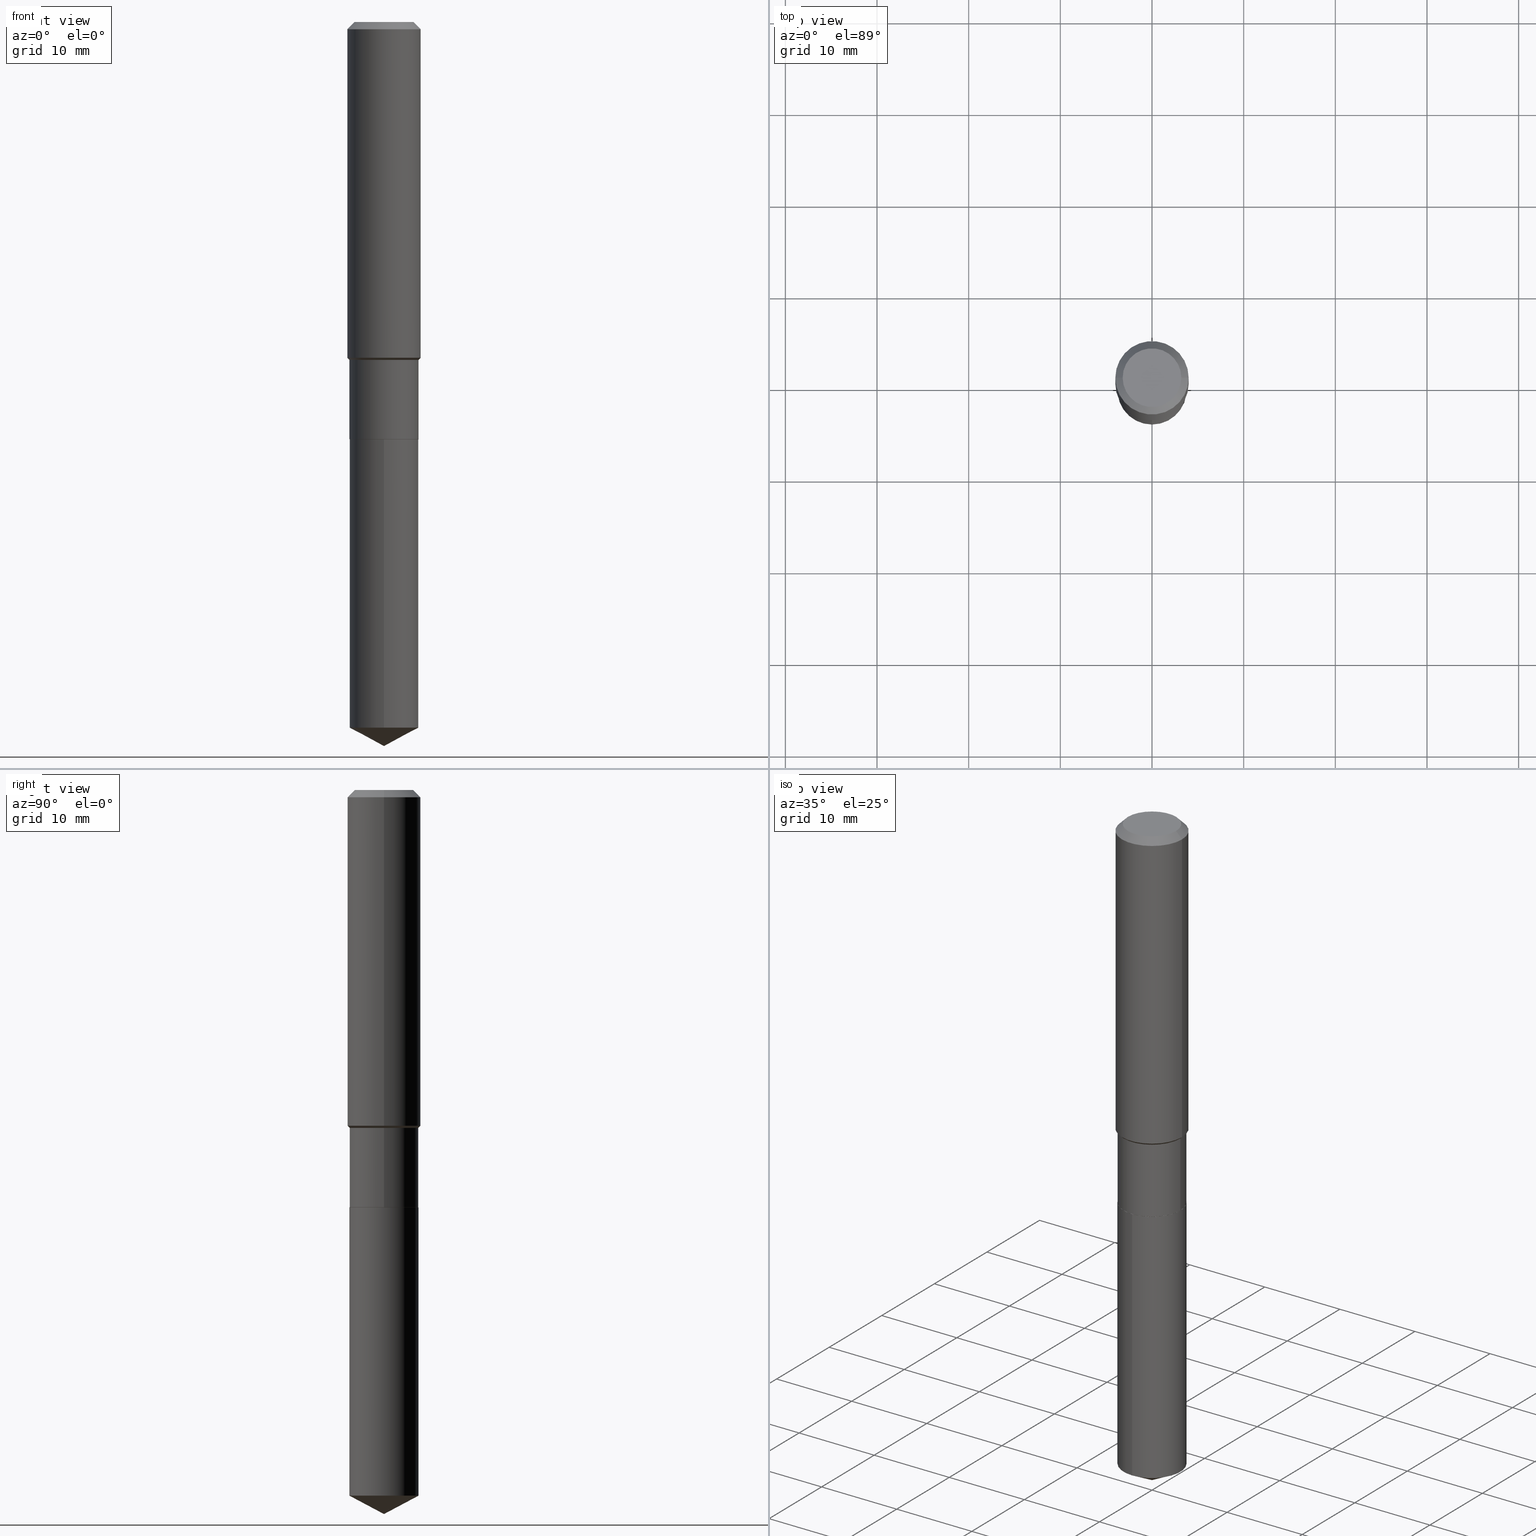
[diagram: canonical four-view strip — front | top / right | iso, engineering-drawing reading convention]
A machine part, canonical four-view strip (front | top / right | iso — engineering-drawing reading convention). The complete STEP part file that produces these views, byte-faithful:
ISO-10303-21;
HEADER;
FILE_DESCRIPTION (( 'STEP AP203' ),
    '1' );
FILE_NAME ('54614.STEP',
    '2024-04-24T15:07:36',
    ( '' ),
    ( '' ),
    'SwSTEP 2.0',
    'SolidWorks 2023',
    '' );
FILE_SCHEMA (( 'CONFIG_CONTROL_DESIGN' ));
ENDSEC;

DATA;
#1 = LENGTH_MEASURE_WITH_UNIT ( LENGTH_MEASURE( 0.02539999999999999897 ), #440 );
#2 = EDGE_LOOP ( 'NONE', ( #79, #457, #85, #409 ) ) ;
#3 = VECTOR ( 'NONE', #425, 39.37007874015748143 ) ;
#4 = SECURITY_CLASSIFICATION ( '', '', #388 ) ;
#5 = CARTESIAN_POINT ( 'NONE',  ( 4.383991928848093439E-29, -6.259178596144105809E-15, -1.792699999999999738 ) ) ;
#6 = DIRECTION ( 'NONE',  ( -6.982962677686265133E-15, -1.000000000000000000, 3.680495781292372402E-15 ) ) ;
#7 = ORIENTED_EDGE ( 'NONE', *, *, #181, .F. ) ;
#8 = VERTEX_POINT ( 'NONE', #126 ) ;
#9 = CIRCLE ( 'NONE', #351, 0.1575000000000001676 ) ;
#10 = APPROVAL_PERSON_ORGANIZATION ( #152, #210, #121 ) ;
#11 = COORDINATED_UNIVERSAL_TIME_OFFSET ( 5, 0, .BEHIND. ) ;
#12 = ADVANCED_BREP_SHAPE_REPRESENTATION ( '54614', ( #163, #154, #84 ), #353 ) ;
#13 = ORIENTED_EDGE ( 'NONE', *, *, #32, .F. ) ;
#14 = ADVANCED_FACE ( 'NONE', ( #481 ), #246, .T. ) ;
#15 = DATE_AND_TIME ( #108, #213 ) ;
#16 = ADVANCED_FACE ( 'NONE', ( #401 ), #288, .F. ) ;
#17 = DIRECTION ( 'NONE',  ( 1.000000000000000000, -6.982962677686264344E-15, 0.000000000000000000 ) ) ;
#18 = ORIENTED_EDGE ( 'NONE', *, *, #349, .T. ) ;
#19 = VERTEX_POINT ( 'NONE', #330 ) ;
#20 = AXIS2_PLACEMENT_3D ( 'NONE', #286, #340, #170 ) ;
#21 = CIRCLE ( 'NONE', #368, 0.1484499999999999986 ) ;
#22 = DIRECTION ( 'NONE',  ( 1.000000000000000000, -6.982962677686267499E-15, 4.876176775795936353E-29 ) ) ;
#23 = PERSON_AND_ORGANIZATION ( #284, #157 ) ;
#24 = FACE_OUTER_BOUND ( 'NONE', #122, .T. ) ;
#25 = CC_DESIGN_PERSON_AND_ORGANIZATION_ASSIGNMENT ( #318, #77, ( #175 ) ) ;
#26 = DIRECTION ( 'NONE',  ( -1.000000000000000000, 6.982962677686265922E-15, -4.876176775795935793E-29 ) ) ;
#27 = DESIGN_CONTEXT ( 'detailed design', #167, 'design' ) ;
#28 = AXIS2_PLACEMENT_3D ( 'NONE', #305, #33, #179 ) ;
#29 = CARTESIAN_POINT ( 'NONE',  ( 0.1260000000000000009, -1.027466422270894443E-15, 3.860086710919126531E-18 ) ) ;
#30 = LINE ( 'NONE', #172, #47 ) ;
#31 = AXIS2_PLACEMENT_3D ( 'NONE', #96, #262, #252 ) ;
#32 = EDGE_CURVE ( 'NONE', #470, #151, #477, .T. ) ;
#33 = DIRECTION ( 'NONE',  ( -2.445684056913023597E-29, 3.491173087549500750E-15, 1.000000000000000000 ) ) ;
#34 = PRODUCT_DEFINITION ( 'UNKNOWN', '', #175, #27 ) ;
#35 = CARTESIAN_POINT ( 'NONE',  ( 0.000000000000000000, 0.000000000000000000, 0.000000000000000000 ) ) ;
#36 = DIRECTION ( 'NONE',  ( -6.982962677686265133E-15, -1.000000000000000000, 3.680495781292372402E-15 ) ) ;
#37 = CC_DESIGN_PERSON_AND_ORGANIZATION_ASSIGNMENT ( #462, #198, ( #4 ) ) ;
#38 = CARTESIAN_POINT ( 'NONE',  ( 7.703226739483228723E-31, -1.099816621735597661E-16, -0.03150000000000019451 ) ) ;
#39 = CONICAL_SURFACE ( 'NONE', #343, 0.1484499999999999431, 0.7853981633974445042 ) ;
#40 = PERSON_AND_ORGANIZATION ( #284, #157 ) ;
#41 = CARTESIAN_POINT ( 'NONE',  ( 3.549108878416488564E-29, -5.067186867063056629E-15, -1.451299999999999812 ) ) ;
#42 = EDGE_LOOP ( 'NONE', ( #370, #259 ) ) ;
#43 = ORIENTED_EDGE ( 'NONE', *, *, #475, .T. ) ;
#44 = LINE ( 'NONE', #189, #485 ) ;
#45 = EDGE_LOOP ( 'NONE', ( #242, #419, #312, #7 ) ) ;
#46 = EDGE_CURVE ( 'NONE', #50, #423, #472, .T. ) ;
#47 = VECTOR ( 'NONE', #484, 39.37007874015748143 ) ;
#48 = CALENDAR_DATE ( 2024, 24, 4 ) ;
#49 = DIRECTION ( 'NONE',  ( -2.445468806185136597E-29, 3.491481338843145583E-15, 1.000000000000000000 ) ) ;
#50 = VERTEX_POINT ( 'NONE', #282 ) ;
#51 = CARTESIAN_POINT ( 'NONE',  ( 7.606084184423361964E-29, -1.085754830227894678E-14, -3.109999999999999876 ) ) ;
#52 = VECTOR ( 'NONE', #64, 39.37007874015748854 ) ;
#53 = DIRECTION ( 'NONE',  ( -2.445468806185136597E-29, 3.491481338843145583E-15, 1.000000000000000000 ) ) ;
#54 = FACE_OUTER_BOUND ( 'NONE', #342, .T. ) ;
#55 = APPROVAL_ROLE ( '' ) ;
#56 = DIRECTION ( 'NONE',  ( 0.000000000000000000, 0.000000000000000000, 1.000000000000000000 ) ) ;
#57 = LINE ( 'NONE', #185, #394 ) ;
#58 = ADVANCED_FACE ( 'NONE', ( #86 ), #473, .T. ) ;
#59 = AXIS2_PLACEMENT_3D ( 'NONE', #35, #438, #255 ) ;
#60 = CARTESIAN_POINT ( 'NONE',  ( 0.1479499999999999982, -7.292307924307788697E-15, -1.792699999999999738 ) ) ;
#61 = VERTEX_POINT ( 'NONE', #360 ) ;
#62 = DIRECTION ( 'NONE',  ( 1.000000000000000000, -6.982962677686265922E-15, 4.876281427513067258E-29 ) ) ;
#63 = ADVANCED_FACE ( 'NONE', ( #24 ), #476, .F. ) ;
#64 = DIRECTION ( 'NONE',  ( -0.7071067811865447972, 7.493145998870346272E-15, 0.7071067811865501263 ) ) ;
#65 = ORIENTED_EDGE ( 'NONE', *, *, #277, .F. ) ;
#66 = AXIS2_PLACEMENT_3D ( 'NONE', #479, #362, #214 ) ;
#67 = CARTESIAN_POINT ( 'NONE',  ( 7.703226739483228723E-31, -1.099816621735597661E-16, -0.03150000000000019451 ) ) ;
#68 = CARTESIAN_POINT ( 'NONE',  ( 4.383991928848093439E-29, -6.259178596144105809E-15, -1.792699999999999738 ) ) ;
#69 = CARTESIAN_POINT ( 'NONE',  ( 0.1479499999999999982, -7.292307924307788697E-15, -1.792699999999999738 ) ) ;
#70 = CARTESIAN_POINT ( 'NONE',  ( 0.1575000000000001676, -6.135405582682112923E-15, -1.442249999999999588 ) ) ;
#71 = CYLINDRICAL_SURFACE ( 'NONE', #59, 0.1484499999999999986 ) ;
#72 = DIRECTION ( 'NONE',  ( -2.445684056913023597E-29, 3.491173087549500750E-15, 1.000000000000000000 ) ) ;
#73 = ORIENTED_EDGE ( 'NONE', *, *, #469, .F. ) ;
#74 = CIRCLE ( 'NONE', #294, 0.1575000000000000011 ) ;
#75 = CALENDAR_DATE ( 2024, 24, 4 ) ;
#76 = EDGE_LOOP ( 'NONE', ( #107, #434, #233, #311 ) ) ;
#77 = PERSON_AND_ORGANIZATION_ROLE ( 'design_supplier' ) ;
#78 = CARTESIAN_POINT ( 'NONE',  ( 3.549108878416488564E-29, -5.067186867063056629E-15, -1.451299999999999812 ) ) ;
#79 = ORIENTED_EDGE ( 'NONE', *, *, #403, .T. ) ;
#80 = CARTESIAN_POINT ( 'NONE',  ( 1.054800691235912301E-15, 0.1484499999999937259, -1.792700000000000182 ) ) ;
#81 = APPROVAL_DATE_TIME ( #243, #210 ) ;
#82 = ORIENTED_EDGE ( 'NONE', *, *, #329, .F. ) ;
#83 = VECTOR ( 'NONE', #341, 39.37007874015748143 ) ;
#84 = AXIS2_PLACEMENT_3D ( 'NONE', #161, #56, #169 ) ;
#85 = ORIENTED_EDGE ( 'NONE', *, *, #240, .F. ) ;
#86 = FACE_OUTER_BOUND ( 'NONE', #145, .T. ) ;
#87 = DIRECTION ( 'NONE',  ( -2.445468806185136597E-29, 3.491481338843145583E-15, 1.000000000000000000 ) ) ;
#88 = AXIS2_PLACEMENT_3D ( 'NONE', #433, #49, #310 ) ;
#89 = DATE_AND_TIME ( #117, #124 ) ;
#90 = DIMENSIONAL_EXPONENTS ( 1.000000000000000000, 0.000000000000000000, 0.000000000000000000, 0.000000000000000000, 0.000000000000000000, 0.000000000000000000, 0.000000000000000000 ) ;
#91 = EDGE_CURVE ( 'NONE', #441, #391, #460, .T. ) ;
#92 = DIRECTION ( 'NONE',  ( 6.273719981627763710E-15, 0.8829475928589293199, 0.4694715627858859208 ) ) ;
#93 = VECTOR ( 'NONE', #92, 39.37007874015748854 ) ;
#94 = VECTOR ( 'NONE', #466, 39.37007874015748143 ) ;
#95 = LOCAL_TIME ( 11, 7, 36.00000000000000000, #289 ) ;
#96 = CARTESIAN_POINT ( 'NONE',  ( 4.383991928848093439E-29, -6.259178596144105809E-15, -1.792699999999999738 ) ) ;
#97 = ORIENTED_EDGE ( 'NONE', *, *, #290, .F. ) ;
#98 = CARTESIAN_POINT ( 'NONE',  ( 3.526977385720512669E-29, -5.035588960946525443E-15, -1.442249999999999588 ) ) ;
#99 = VERTEX_POINT ( 'NONE', #333 ) ;
#100 = CARTESIAN_POINT ( 'NONE',  ( -9.439721640706199741E-47, 1.347742071746726217E-32, 3.860086710912458191E-18 ) ) ;
#101 = DIRECTION ( 'NONE',  ( 1.000000000000000000, -6.982962677686268288E-15, 0.000000000000000000 ) ) ;
#102 = DIRECTION ( 'NONE',  ( -6.982962677686265133E-15, -1.000000000000000000, 3.680495781292372402E-15 ) ) ;
#103 = EDGE_LOOP ( 'NONE', ( #459, #444, #402, #153 ) ) ;
#104 = ADVANCED_FACE ( 'NONE', ( #416 ), #358, .T. ) ;
#105 = DIRECTION ( 'NONE',  ( 0.7071067811865451302, -7.319954787623248157E-15, -0.7071067811865499042 ) ) ;
#106 = LINE ( 'NONE', #268, #287 ) ;
#107 = ORIENTED_EDGE ( 'NONE', *, *, #298, .T. ) ;
#108 = CALENDAR_DATE ( 2024, 24, 4 ) ;
#109 = AXIS2_PLACEMENT_3D ( 'NONE', #452, #420, #297 ) ;
#110 = DIRECTION ( 'NONE',  ( -2.445468806185136597E-29, 3.491481338843145583E-15, 1.000000000000000000 ) ) ;
#111 = VERTEX_POINT ( 'NONE', #60 ) ;
#112 = AXIS2_PLACEMENT_3D ( 'NONE', #118, #395, #17 ) ;
#113 = PERSON_AND_ORGANIZATION_ROLE ( 'creator' ) ;
#114 = CC_DESIGN_PERSON_AND_ORGANIZATION_ASSIGNMENT ( #23, #332, ( #291 ) ) ;
#115 = DIRECTION ( 'NONE',  ( -2.445468806185136597E-29, 3.491481338843145583E-15, 1.000000000000000000 ) ) ;
#116 = ORIENTED_EDGE ( 'NONE', *, *, #141, .F. ) ;
#117 = CALENDAR_DATE ( 2024, 24, 4 ) ;
#118 = CARTESIAN_POINT ( 'NONE',  ( 3.549108878416488564E-29, -5.067186867063056629E-15, -1.451299999999999812 ) ) ;
#119 = ORIENTED_EDGE ( 'NONE', *, *, #364, .T. ) ;
#120 = LINE ( 'NONE', #80, #3 ) ;
#121 = APPROVAL_ROLE ( '' ) ;
#122 = EDGE_LOOP ( 'NONE', ( #275, #256 ) ) ;
#123 = CONICAL_SURFACE ( 'NONE', #66, 0.1575000000000000011, 0.7853981633974449483 ) ;
#124 = LOCAL_TIME ( 11, 7, 36.00000000000000000, #465 ) ;
#125 = PERSON_AND_ORGANIZATION ( #284, #157 ) ;
#126 = CARTESIAN_POINT ( 'NONE',  ( -0.1575000000000000011, -1.453680502737883861E-15, -0.03150000000000019451 ) ) ;
#127 = PERSON_AND_ORGANIZATION ( #284, #157 ) ;
#128 = CIRCLE ( 'NONE', #165, 0.1575000000000000011 ) ;
#129 = ADVANCED_FACE ( 'NONE', ( #442 ), #221, .F. ) ;
#130 = DIRECTION ( 'NONE',  ( 1.000000000000000000, -6.982962677686267499E-15, 0.000000000000000000 ) ) ;
#131 = DIRECTION ( 'NONE',  ( 1.000000000000000000, -6.982962677686265922E-15, 4.876281427513067258E-29 ) ) ;
#132 = DIRECTION ( 'NONE',  ( 1.000000000000000000, -6.982962677686267499E-15, 0.000000000000000000 ) ) ;
#133 = AXIS2_PLACEMENT_3D ( 'NONE', #67, #453, #490 ) ;
#134 = VECTOR ( 'NONE', #192, 39.37007874015748143 ) ;
#135 = DIRECTION ( 'NONE',  ( -2.445468806185136597E-29, 3.491481338843145583E-15, 1.000000000000000000 ) ) ;
#136 = ORIENTED_EDGE ( 'NONE', *, *, #469, .T. ) ;
#137 = CARTESIAN_POINT ( 'NONE',  ( 7.412648154614789449E-29, -1.058253470461137512E-14, -3.031067734869853592 ) ) ;
#138 = CARTESIAN_POINT ( 'NONE',  ( 4.383991928848093439E-29, -6.259178596144105809E-15, -1.792699999999999738 ) ) ;
#139 = CLOSED_SHELL ( 'NONE', ( #315, #389, #58, #258, #448, #146, #299, #14, #104, #16, #63, #350 ) ) ;
#140 = CIRCLE ( 'NONE', #404, 0.1479499999999999982 ) ;
#141 = EDGE_CURVE ( 'NONE', #391, #441, #270, .T. ) ;
#142 = CARTESIAN_POINT ( 'NONE',  ( -0.1484500000000000264, -4.607509170033001160E-15, -1.792199999999999793 ) ) ;
#143 = ORIENTED_EDGE ( 'NONE', *, *, #488, .F. ) ;
#144 = CARTESIAN_POINT ( 'NONE',  ( 7.703226739483228723E-31, -1.099816621735597661E-16, -0.03150000000000019451 ) ) ;
#145 = EDGE_LOOP ( 'NONE', ( #347, #239, #143, #190 ) ) ;
#146 = ADVANCED_FACE ( 'NONE', ( #216 ), #71, .T. ) ;
#147 = CARTESIAN_POINT ( 'NONE',  ( -0.1479499999999999982, -5.207930618587038189E-15, -1.792699999999999738 ) ) ;
#148 = ORIENTED_EDGE ( 'NONE', *, *, #298, .F. ) ;
#149 = DIRECTION ( 'NONE',  ( 0.7071067811866320607, -2.468850131083142557E-15, 0.7071067811864629737 ) ) ;
#150 = CARTESIAN_POINT ( 'NONE',  ( 0.1575000000000000011, -1.209798283909146741E-15, -0.03150000000000019451 ) ) ;
#151 = VERTEX_POINT ( 'NONE', #304 ) ;
#152 = PERSON_AND_ORGANIZATION ( #284, #157 ) ;
#153 = ORIENTED_EDGE ( 'NONE', *, *, #475, .F. ) ;
#154 = MANIFOLD_SOLID_BREP ( 'Body-Move/Copy2[2]', #139 ) ;
#155 = AXIS2_PLACEMENT_3D ( 'NONE', #244, #53, #207 ) ;
#156 = AXIS2_PLACEMENT_3D ( 'NONE', #228, #384, #6 ) ;
#157 = ORGANIZATION ( 'UNSPECIFIED', 'UNSPECIFIED', '' ) ;
#158 = FACE_OUTER_BOUND ( 'NONE', #45, .T. ) ;
#159 = ADVANCED_FACE ( 'NONE', ( #372 ), #447, .T. ) ;
#160 = EDGE_CURVE ( 'NONE', #200, #61, #30, .T. ) ;
#161 = CARTESIAN_POINT ( 'NONE',  ( 0.000000000000000000, 0.000000000000000000, 0.000000000000000000 ) ) ;
#162 = DIRECTION ( 'NONE',  ( -2.445468806185136597E-29, 3.491481338843145583E-15, 1.000000000000000000 ) ) ;
#163 = MANIFOLD_SOLID_BREP ( 'Body-Move/Copy2[1]', #322 ) ;
#164 = CARTESIAN_POINT ( 'NONE',  ( 0.1484499999999999431, -6.103807676565582525E-15, -1.451299999999999812 ) ) ;
#165 = AXIS2_PLACEMENT_3D ( 'NONE', #38, #292, #410 ) ;
#166 = DIRECTION ( 'NONE',  ( -2.445468806185136597E-29, 3.491481338843145583E-15, 1.000000000000000000 ) ) ;
#167 = APPLICATION_CONTEXT ( 'configuration controlled 3d designs of mechanical parts and assemblies' ) ;
#168 = CARTESIAN_POINT ( 'NONE',  ( -0.1260000000000000009, 9.348441284752484904E-16, 3.860086710906112637E-18 ) ) ;
#169 = DIRECTION ( 'NONE',  ( 1.000000000000000000, 0.000000000000000000, 0.000000000000000000 ) ) ;
#170 = DIRECTION ( 'NONE',  ( 1.000000000000000000, -6.982962677686265922E-15, 4.876176775795935793E-29 ) ) ;
#171 = DIRECTION ( 'NONE',  ( 1.000000000000000000, -6.982962677686265133E-15, 4.876176775795935793E-29 ) ) ;
#172 = CARTESIAN_POINT ( 'NONE',  ( -1.036620809502482311E-15, -0.1484500000000062436, -1.792699999999999072 ) ) ;
#173 = AXIS2_PLACEMENT_3D ( 'NONE', #100, #264, #131 ) ;
#174 = VECTOR ( 'NONE', #486, 39.37007874015748143 ) ;
#175 = PRODUCT_DEFINITION_FORMATION_WITH_SPECIFIED_SOURCE ( 'ANY', '', #291, .NOT_KNOWN. ) ;
#176 = SHAPE_DEFINITION_REPRESENTATION ( #480, #12 ) ;
#177 = CC_DESIGN_SECURITY_CLASSIFICATION ( #4, ( #175 ) ) ;
#178 = CARTESIAN_POINT ( 'NONE',  ( -0.1484499999999999431, -4.012386175827188110E-15, -1.451299999999999812 ) ) ;
#179 = DIRECTION ( 'NONE',  ( -6.982962677686268288E-15, -1.000000000000000000, 3.541896320645563630E-15 ) ) ;
#180 = FACE_OUTER_BOUND ( 'NONE', #272, .T. ) ;
#181 = EDGE_CURVE ( 'NONE', #111, #357, #407, .T. ) ;
#182 = EDGE_CURVE ( 'NONE', #99, #406, #313, .T. ) ;
#183 = LINE ( 'NONE', #178, #52 ) ;
#184 = ORIENTED_EDGE ( 'NONE', *, *, #245, .T. ) ;
#185 = CARTESIAN_POINT ( 'NONE',  ( 0.1484499999999999431, -6.103807676565582525E-15, -1.451299999999999812 ) ) ;
#186 = AXIS2_PLACEMENT_3D ( 'NONE', #367, #324, #26 ) ;
#187 = AXIS2_PLACEMENT_3D ( 'NONE', #437, #326, #283 ) ;
#188 = CARTESIAN_POINT ( 'NONE',  ( -1.036620809502451743E-15, -0.1484500000000105457, -3.031067734869853147 ) ) ;
#189 = CARTESIAN_POINT ( 'NONE',  ( 7.605305657039739198E-29, -1.085865350646718111E-14, -3.109999999999999876 ) ) ;
#190 = ORIENTED_EDGE ( 'NONE', *, *, #245, .F. ) ;
#191 = APPROVAL_DATE_TIME ( #471, #316 ) ;
#192 = DIRECTION ( 'NONE',  ( -0.7071067811866320607, 7.493145998870660238E-15, 0.7071067811864629737 ) ) ;
#193 = EDGE_LOOP ( 'NONE', ( #119, #373 ) ) ;
#194 = APPROVAL_ROLE ( '' ) ;
#195 = DIRECTION ( 'NONE',  ( -6.165590087286832874E-15, -0.8829475928589261002, 0.4694715627858920826 ) ) ;
#196 = ORIENTED_EDGE ( 'NONE', *, *, #474, .T. ) ;
#197 = APPROVAL ( #241, 'UNSPECIFIED' ) ;
#198 = PERSON_AND_ORGANIZATION_ROLE ( 'classification_officer' ) ;
#199 = AXIS2_PLACEMENT_3D ( 'NONE', #41, #234, #276 ) ;
#200 = VERTEX_POINT ( 'NONE', #188 ) ;
#201 = CIRCLE ( 'NONE', #280, 0.1484499999999999986 ) ;
#202 = CARTESIAN_POINT ( 'NONE',  ( 0.1575000000000000844, -1.099816621735587677E-15, 7.679978421878603638E-30 ) ) ;
#203 = ORIENTED_EDGE ( 'NONE', *, *, #257, .T. ) ;
#204 = EDGE_CURVE ( 'NONE', #111, #19, #140, .T. ) ;
#205 = ORIENTED_EDGE ( 'NONE', *, *, #182, .F. ) ;
#206 = EDGE_CURVE ( 'NONE', #19, #111, #323, .T. ) ;
#207 = DIRECTION ( 'NONE',  ( 1.000000000000000000, -6.982962677686267499E-15, 4.876176775795936353E-29 ) ) ;
#208 = EDGE_CURVE ( 'NONE', #391, #8, #106, .T. ) ;
#209 = DIRECTION ( 'NONE',  ( -2.445684056913023597E-29, 3.491173087549500750E-15, 1.000000000000000000 ) ) ;
#210 = APPROVAL ( #352, 'UNSPECIFIED' ) ;
#211 = CARTESIAN_POINT ( 'NONE',  ( 0.000000000000000000, 0.000000000000000000, 0.000000000000000000 ) ) ;
#212 = AXIS2_PLACEMENT_3D ( 'NONE', #449, #376, #101 ) ;
#213 = LOCAL_TIME ( 11, 7, 36.00000000000000000, #355 ) ;
#214 = DIRECTION ( 'NONE',  ( -1.000000000000000000, 6.982962677686265922E-15, 0.000000000000000000 ) ) ;
#215 = CALENDAR_DATE ( 2024, 24, 4 ) ;
#216 = FACE_OUTER_BOUND ( 'NONE', #397, .T. ) ;
#217 = ORIENTED_EDGE ( 'NONE', *, *, #225, .F. ) ;
#218 =( NAMED_UNIT ( * ) PLANE_ANGLE_UNIT ( ) SI_UNIT ( $, .RADIAN. ) );
#219 = ORIENTED_EDGE ( 'NONE', *, *, #46, .F. ) ;
#220 = CIRCLE ( 'NONE', #212, 0.1484499999999999986 ) ;
#221 = PLANE ( 'NONE',  #483 ) ;
#222 = EDGE_CURVE ( 'NONE', #423, #254, #120, .T. ) ;
#223 = LINE ( 'NONE', #266, #83 ) ;
#224 = ORIENTED_EDGE ( 'NONE', *, *, #181, .T. ) ;
#225 = EDGE_CURVE ( 'NONE', #50, #200, #44, .T. ) ;
#226 = DIRECTION ( 'NONE',  ( -6.982962677686265133E-15, -1.000000000000000000, 3.680495781292372402E-15 ) ) ;
#227 = LINE ( 'NONE', #371, #174 ) ;
#228 = CARTESIAN_POINT ( 'NONE',  ( 7.412648154614789449E-29, -1.058253470461137512E-14, -3.031067734869853592 ) ) ;
#229 = AXIS2_PLACEMENT_3D ( 'NONE', #211, #166, #22 ) ;
#230 = AXIS2_PLACEMENT_3D ( 'NONE', #137, #445, #226 ) ;
#231 = APPROVAL_PERSON_ORGANIZATION ( #320, #197, #55 ) ;
#232 = DIRECTION ( 'NONE',  ( 1.000000000000000000, -6.982962677686264344E-15, 0.000000000000000000 ) ) ;
#233 = ORIENTED_EDGE ( 'NONE', *, *, #364, .F. ) ;
#234 = DIRECTION ( 'NONE',  ( -2.445468806185136597E-29, 3.491481338843145583E-15, 1.000000000000000000 ) ) ;
#235 = VERTEX_POINT ( 'NONE', #142 ) ;
#236 = DIRECTION ( 'NONE',  ( -2.445468806185136597E-29, 3.491481338843145583E-15, 1.000000000000000000 ) ) ;
#237 = ORIENTED_EDGE ( 'NONE', *, *, #208, .T. ) ;
#238 = CIRCLE ( 'NONE', #187, 0.1484499999999999986 ) ;
#239 = ORIENTED_EDGE ( 'NONE', *, *, #446, .T. ) ;
#240 = EDGE_CURVE ( 'NONE', #406, #99, #385, .T. ) ;
#241 = APPROVAL_STATUS ( 'not_yet_approved' ) ;
#242 = ORIENTED_EDGE ( 'NONE', *, *, #204, .T. ) ;
#243 = DATE_AND_TIME ( #75, #451 ) ;
#244 = CARTESIAN_POINT ( 'NONE',  ( 0.000000000000000000, 0.000000000000000000, 0.000000000000000000 ) ) ;
#245 = EDGE_CURVE ( 'NONE', #470, #279, #274, .T. ) ;
#246 = CYLINDRICAL_SURFACE ( 'NONE', #229, 0.1575000000000000844 ) ;
#247 = CONICAL_SURFACE ( 'NONE', #109, 0.1479499999999999982, 0.7853981633975678500 ) ;
#248 = DATE_TIME_ROLE ( 'classification_date' ) ;
#249 = CC_DESIGN_DATE_AND_TIME_ASSIGNMENT ( #15, #427, ( #34 ) ) ;
#250 = CARTESIAN_POINT ( 'NONE',  ( -8.868108235719390804E-28, 1.265896584479694878E-13, 36.26007874015748200 ) ) ;
#251 = APPROVAL_PERSON_ORGANIZATION ( #127, #316, #194 ) ;
#252 = DIRECTION ( 'NONE',  ( -6.982962677686265133E-15, -1.000000000000000000, 3.680495781292372402E-15 ) ) ;
#253 = CYLINDRICAL_SURFACE ( 'NONE', #271, 0.1484499999999999986 ) ;
#254 = VERTEX_POINT ( 'NONE', #386 ) ;
#255 = DIRECTION ( 'NONE',  ( 1.000000000000000000, -6.982962677686265133E-15, 4.876176775795935793E-29 ) ) ;
#256 = ORIENTED_EDGE ( 'NONE', *, *, #206, .F. ) ;
#257 = EDGE_CURVE ( 'NONE', #357, #406, #422, .T. ) ;
#258 = ADVANCED_FACE ( 'NONE', ( #429 ), #411, .T. ) ;
#259 = ORIENTED_EDGE ( 'NONE', *, *, #91, .T. ) ;
#260 = AXIS2_PLACEMENT_3D ( 'NONE', #250, #209, #327 ) ;
#261 = CC_DESIGN_APPROVAL ( #197, ( #4 ) ) ;
#262 = DIRECTION ( 'NONE',  ( -2.445684056913023597E-29, 3.491173087549500750E-15, 1.000000000000000000 ) ) ;
#263 = DIRECTION ( 'NONE',  ( -2.445684056913023597E-29, 3.491173087549500750E-15, 1.000000000000000000 ) ) ;
#264 = DIRECTION ( 'NONE',  ( -2.445468806185136597E-29, 3.491481338843145583E-15, 1.000000000000000000 ) ) ;
#265 = CARTESIAN_POINT ( 'NONE',  ( 3.549108878416488564E-29, -5.067186867063056629E-15, -1.451299999999999812 ) ) ;
#266 = CARTESIAN_POINT ( 'NONE',  ( -0.1575000000000000844, 1.119104808822158392E-15, -7.747322767151481189E-30 ) ) ;
#267 = EDGE_LOOP ( 'NONE', ( #430, #269, #302, #354 ) ) ;
#268 = CARTESIAN_POINT ( 'NONE',  ( -0.1575000000000000011, 9.898349595620272334E-16, -0.03150000000000019451 ) ) ;
#269 = ORIENTED_EDGE ( 'NONE', *, *, #363, .T. ) ;
#270 = CIRCLE ( 'NONE', #173, 0.1260000000000000009 ) ;
#271 = AXIS2_PLACEMENT_3D ( 'NONE', #337, #263, #405 ) ;
#272 = EDGE_LOOP ( 'NONE', ( #356, #18, #319, #348 ) ) ;
#273 = PERSON_AND_ORGANIZATION_ROLE ( 'creator' ) ;
#274 = LINE ( 'NONE', #202, #94 ) ;
#275 = ORIENTED_EDGE ( 'NONE', *, *, #204, .F. ) ;
#276 = DIRECTION ( 'NONE',  ( 1.000000000000000000, -6.982962677686264344E-15, 0.000000000000000000 ) ) ;
#277 = EDGE_CURVE ( 'NONE', #8, #279, #74, .T. ) ;
#278 = EDGE_LOOP ( 'NONE', ( #219, #317, #464 ) ) ;
#279 = VERTEX_POINT ( 'NONE', #150 ) ;
#280 = AXIS2_PLACEMENT_3D ( 'NONE', #68, #380, #102 ) ;
#281 = COORDINATED_UNIVERSAL_TIME_OFFSET ( 5, 0, .BEHIND. ) ;
#282 = CARTESIAN_POINT ( 'NONE',  ( 7.606077416999504310E-29, -1.085754830227894678E-14, -3.109999999999999876 ) ) ;
#283 = DIRECTION ( 'NONE',  ( 1.000000000000000000, -6.982962677686268288E-15, 0.000000000000000000 ) ) ;
#284 = PERSON ( 'UNSPECIFIED', 'UNSPECIFIED', 'UNSPECIFIED', ('UNSPECIFIED'), ('UNSPECIFIED'), ('UNSPECIFIED') ) ;
#285 = CARTESIAN_POINT ( 'NONE',  ( 4.383991928848093439E-29, -6.259178596144105809E-15, -1.792699999999999738 ) ) ;
#286 = CARTESIAN_POINT ( 'NONE',  ( 4.383991928848093439E-29, -6.259178596144105809E-15, -1.792699999999999738 ) ) ;
#287 = VECTOR ( 'NONE', #421, 39.37007874015748143 ) ;
#288 = PLANE ( 'NONE',  #186 ) ;
#289 = COORDINATED_UNIVERSAL_TIME_OFFSET ( 5, 0, .BEHIND. ) ;
#290 = EDGE_CURVE ( 'NONE', #19, #235, #454, .T. ) ;
#291 = PRODUCT ( '54614', '54614', '', ( #365 ) ) ;
#292 = DIRECTION ( 'NONE',  ( -2.445468806185136597E-29, 3.491481338843145583E-15, 1.000000000000000000 ) ) ;
#293 = AXIS2_PLACEMENT_3D ( 'NONE', #300, #412, #62 ) ;
#294 = AXIS2_PLACEMENT_3D ( 'NONE', #144, #110, #417 ) ;
#295 =( NAMED_UNIT ( * ) SI_UNIT ( $, .STERADIAN. ) SOLID_ANGLE_UNIT ( ) );
#296 = ORIENTED_EDGE ( 'NONE', *, *, #277, .T. ) ;
#297 = DIRECTION ( 'NONE',  ( 1.000000000000000000, -6.982962677686265133E-15, 0.000000000000000000 ) ) ;
#298 = EDGE_CURVE ( 'NONE', #200, #423, #328, .T. ) ;
#299 = ADVANCED_FACE ( 'NONE', ( #458 ), #39, .T. ) ;
#300 = CARTESIAN_POINT ( 'NONE',  ( -9.439721640706199741E-47, 1.347742071746726217E-32, 3.860086710912458191E-18 ) ) ;
#301 = FACE_OUTER_BOUND ( 'NONE', #267, .T. ) ;
#302 = ORIENTED_EDGE ( 'NONE', *, *, #160, .T. ) ;
#303 = CC_DESIGN_PERSON_AND_ORGANIZATION_ASSIGNMENT ( #125, #273, ( #34 ) ) ;
#304 = CARTESIAN_POINT ( 'NONE',  ( -0.1575000000000001676, -3.916484152124366261E-15, -1.442249999999999588 ) ) ;
#305 = CARTESIAN_POINT ( 'NONE',  ( -8.868108235719390804E-28, 1.265896584479694878E-13, 36.26007874015748200 ) ) ;
#306 = FACE_OUTER_BOUND ( 'NONE', #377, .T. ) ;
#307 = VECTOR ( 'NONE', #149, 39.37007874015748143 ) ;
#308 = DIRECTION ( 'NONE',  ( -2.445468806185136597E-29, 3.491481338843145583E-15, 1.000000000000000000 ) ) ;
#309 = EDGE_LOOP ( 'NONE', ( #346, #196, #13, #82 ) ) ;
#310 = DIRECTION ( 'NONE',  ( 1.000000000000000000, -6.982962677686265133E-15, 0.000000000000000000 ) ) ;
#311 = ORIENTED_EDGE ( 'NONE', *, *, #160, .F. ) ;
#312 = ORIENTED_EDGE ( 'NONE', *, *, #403, .F. ) ;
#313 = CIRCLE ( 'NONE', #112, 0.1484499999999999431 ) ;
#314 = ORIENTED_EDGE ( 'NONE', *, *, #436, .F. ) ;
#315 = ADVANCED_FACE ( 'NONE', ( #158 ), #439, .T. ) ;
#316 = APPROVAL ( #321, 'UNSPECIFIED' ) ;
#317 = ORIENTED_EDGE ( 'NONE', *, *, #225, .T. ) ;
#318 = PERSON_AND_ORGANIZATION ( #284, #157 ) ;
#319 = ORIENTED_EDGE ( 'NONE', *, *, #488, .T. ) ;
#320 = PERSON_AND_ORGANIZATION ( #284, #157 ) ;
#321 = APPROVAL_STATUS ( 'not_yet_approved' ) ;
#322 = CLOSED_SHELL ( 'NONE', ( #159, #390, #413, #415, #129 ) ) ;
#323 = CIRCLE ( 'NONE', #88, 0.1479499999999999982 ) ;
#324 = DIRECTION ( 'NONE',  ( 2.438088387897960049E-29, -3.491481338843145188E-15, -1.000000000000000000 ) ) ;
#325 = CC_DESIGN_APPROVAL ( #316, ( #34 ) ) ;
#326 = DIRECTION ( 'NONE',  ( -2.445468806185136597E-29, 3.491481338843145583E-15, 1.000000000000000000 ) ) ;
#327 = DIRECTION ( 'NONE',  ( -6.982962677686268288E-15, -1.000000000000000000, 3.541896320645563630E-15 ) ) ;
#328 = CIRCLE ( 'NONE', #156, 0.1484499999999999986 ) ;
#329 = EDGE_CURVE ( 'NONE', #406, #470, #57, .T. ) ;
#330 = CARTESIAN_POINT ( 'NONE',  ( -0.1479499999999999982, -5.205281391412926987E-15, -1.792699999999999738 ) ) ;
#331 = FACE_OUTER_BOUND ( 'NONE', #278, .T. ) ;
#332 = PERSON_AND_ORGANIZATION_ROLE ( 'design_owner' ) ;
#333 = CARTESIAN_POINT ( 'NONE',  ( -0.1484499999999999431, -4.607509170033001948E-15, -1.451299999999999812 ) ) ;
#334 = UNCERTAINTY_MEASURE_WITH_UNIT (LENGTH_MEASURE( 1.000000000000000082E-05 ), #418, 'distance_accuracy_value', 'NONE');
#335 = DATE_AND_TIME ( #215, #95 ) ;
#336 = DIRECTION ( 'NONE',  ( 6.982962677686265922E-15, 1.000000000000000000, -3.491173087549500750E-15 ) ) ;
#337 = CARTESIAN_POINT ( 'NONE',  ( 4.383991928848093439E-29, -6.259178596144105809E-15, -1.792699999999999738 ) ) ;
#338 = CARTESIAN_POINT ( 'NONE',  ( 0.1575000000000000011, -1.190510096822576026E-15, -0.03150000000000019451 ) ) ;
#339 = CC_DESIGN_PERSON_AND_ORGANIZATION_ASSIGNMENT ( #40, #113, ( #175 ) ) ;
#340 = DIRECTION ( 'NONE',  ( -2.438088387897960049E-29, 3.491481338843145188E-15, 1.000000000000000000 ) ) ;
#341 = DIRECTION ( 'NONE',  ( -2.445468806185136877E-29, 3.491481338843145188E-15, 1.000000000000000000 ) ) ;
#342 = EDGE_LOOP ( 'NONE', ( #217, #393, #148 ) ) ;
#343 = AXIS2_PLACEMENT_3D ( 'NONE', #78, #236, #396 ) ;
#344 = LOCAL_TIME ( 11, 7, 36.00000000000000000, #11 ) ;
#345 = DIRECTION ( 'NONE',  ( -2.445468806185136877E-29, 3.491481338843145188E-15, 1.000000000000000000 ) ) ;
#346 = ORIENTED_EDGE ( 'NONE', *, *, #240, .T. ) ;
#347 = ORIENTED_EDGE ( 'NONE', *, *, #32, .T. ) ;
#348 = ORIENTED_EDGE ( 'NONE', *, *, #208, .F. ) ;
#349 = EDGE_CURVE ( 'NONE', #441, #279, #456, .T. ) ;
#350 = ADVANCED_FACE ( 'NONE', ( #306 ), #247, .T. ) ;
#351 = AXIS2_PLACEMENT_3D ( 'NONE', #98, #135, #132 ) ;
#352 = APPROVAL_STATUS ( 'not_yet_approved' ) ;
#353 =( GEOMETRIC_REPRESENTATION_CONTEXT ( 3 ) GLOBAL_UNCERTAINTY_ASSIGNED_CONTEXT ( ( #334 ) ) GLOBAL_UNIT_ASSIGNED_CONTEXT ( ( #418, #218, #295 ) ) REPRESENTATION_CONTEXT ( 'NONE', 'WORKASPACE' ) );
#354 = ORIENTED_EDGE ( 'NONE', *, *, #489, .F. ) ;
#355 = COORDINATED_UNIVERSAL_TIME_OFFSET ( 5, 0, .BEHIND. ) ;
#356 = ORIENTED_EDGE ( 'NONE', *, *, #91, .F. ) ;
#357 = VERTEX_POINT ( 'NONE', #487 ) ;
#358 = CONICAL_SURFACE ( 'NONE', #133, 0.1575000000000000011, 0.7853981633974449483 ) ;
#359 = AXIS2_PLACEMENT_3D ( 'NONE', #285, #87, #392 ) ;
#360 = CARTESIAN_POINT ( 'NONE',  ( -1.036620809502482311E-15, -0.1484500000000062436, -1.792699999999999072 ) ) ;
#361 = CARTESIAN_POINT ( 'NONE',  ( 3.526977385720512669E-29, -5.035588960946525443E-15, -1.442249999999999588 ) ) ;
#362 = DIRECTION ( 'NONE',  ( 2.445468806185136597E-29, -3.491481338843145583E-15, -1.000000000000000000 ) ) ;
#363 = EDGE_CURVE ( 'NONE', #423, #200, #378, .T. ) ;
#364 = EDGE_CURVE ( 'NONE', #61, #254, #21, .T. ) ;
#365 = MECHANICAL_CONTEXT ( 'NONE', #468, 'mechanical' ) ;
#366 = DIRECTION ( 'NONE',  ( 0.7071067811865447972, -2.468850131082228662E-15, 0.7071067811865501263 ) ) ;
#367 = CARTESIAN_POINT ( 'NONE',  ( -4.719860820353099871E-47, 6.738710358733631085E-33, 1.930043355456229096E-18 ) ) ;
#368 = AXIS2_PLACEMENT_3D ( 'NONE', #381, #72, #36 ) ;
#369 = APPLICATION_PROTOCOL_DEFINITION ( 'international standard', 'config_control_design', 1994, #468 ) ;
#370 = ORIENTED_EDGE ( 'NONE', *, *, #141, .T. ) ;
#371 = CARTESIAN_POINT ( 'NONE',  ( -0.1484499999999999986, 1.054800691235868716E-15, -7.302159141483407353E-30 ) ) ;
#372 = FACE_OUTER_BOUND ( 'NONE', #76, .T. ) ;
#373 = ORIENTED_EDGE ( 'NONE', *, *, #489, .T. ) ;
#374 = APPROVAL_DATE_TIME ( #335, #197 ) ;
#375 = CC_DESIGN_DATE_AND_TIME_ASSIGNMENT ( #89, #248, ( #4 ) ) ;
#376 = DIRECTION ( 'NONE',  ( -2.445468806185136597E-29, 3.491481338843145583E-15, 1.000000000000000000 ) ) ;
#377 = EDGE_LOOP ( 'NONE', ( #97, #398, #224, #73 ) ) ;
#378 = CIRCLE ( 'NONE', #230, 0.1484499999999999986 ) ;
#379 = DIRECTION ( 'NONE',  ( 2.445684056913023317E-29, -3.491173087549500750E-15, -1.000000000000000000 ) ) ;
#380 = DIRECTION ( 'NONE',  ( -2.445684056913023597E-29, 3.491173087549500750E-15, 1.000000000000000000 ) ) ;
#381 = CARTESIAN_POINT ( 'NONE',  ( 4.383991928848093439E-29, -6.259178596144105809E-15, -1.792699999999999738 ) ) ;
#382 = CARTESIAN_POINT ( 'NONE',  ( 1.054800691235942475E-15, 0.1484499999999893960, -3.031067734869854480 ) ) ;
#383 = DIRECTION ( 'NONE',  ( 1.000000000000000000, -6.982962677686265133E-15, 0.000000000000000000 ) ) ;
#384 = DIRECTION ( 'NONE',  ( -2.445684056913023597E-29, 3.491173087549500750E-15, 1.000000000000000000 ) ) ;
#385 = CIRCLE ( 'NONE', #450, 0.1484499999999999431 ) ;
#386 = CARTESIAN_POINT ( 'NONE',  ( 1.054800691235942869E-15, 0.1484499999999937259, -1.792700000000000182 ) ) ;
#387 = ORIENTED_EDGE ( 'NONE', *, *, #446, .F. ) ;
#388 = SECURITY_CLASSIFICATION_LEVEL ( 'unclassified' ) ;
#389 = ADVANCED_FACE ( 'NONE', ( #180 ), #123, .T. ) ;
#390 = ADVANCED_FACE ( 'NONE', ( #54 ), #424, .T. ) ;
#391 = VERTEX_POINT ( 'NONE', #168 ) ;
#392 = DIRECTION ( 'NONE',  ( 1.000000000000000000, -6.982962677686265133E-15, 0.000000000000000000 ) ) ;
#393 = ORIENTED_EDGE ( 'NONE', *, *, #46, .T. ) ;
#394 = VECTOR ( 'NONE', #366, 39.37007874015748854 ) ;
#395 = DIRECTION ( 'NONE',  ( -2.445468806185136597E-29, 3.491481338843145583E-15, 1.000000000000000000 ) ) ;
#396 = DIRECTION ( 'NONE',  ( 1.000000000000000000, -6.982962677686264344E-15, 0.000000000000000000 ) ) ;
#397 = EDGE_LOOP ( 'NONE', ( #314, #136, #203, #205 ) ) ;
#398 = ORIENTED_EDGE ( 'NONE', *, *, #206, .T. ) ;
#399 = CONICAL_SURFACE ( 'NONE', #28, 74.04434902938348273, 1.082104136236486269 ) ;
#400 = VECTOR ( 'NONE', #345, 39.37007874015748143 ) ;
#401 = FACE_OUTER_BOUND ( 'NONE', #42, .T. ) ;
#402 = ORIENTED_EDGE ( 'NONE', *, *, #329, .T. ) ;
#403 = EDGE_CURVE ( 'NONE', #357, #235, #238, .T. ) ;
#404 = AXIS2_PLACEMENT_3D ( 'NONE', #5, #115, #383 ) ;
#405 = DIRECTION ( 'NONE',  ( -6.982962677686265133E-15, -1.000000000000000000, 3.680495781292372402E-15 ) ) ;
#406 = VERTEX_POINT ( 'NONE', #164 ) ;
#407 = LINE ( 'NONE', #69, #307 ) ;
#408 = FACE_OUTER_BOUND ( 'NONE', #2, .T. ) ;
#409 = ORIENTED_EDGE ( 'NONE', *, *, #257, .F. ) ;
#410 = DIRECTION ( 'NONE',  ( 1.000000000000000000, -6.982962677686265922E-15, 0.000000000000000000 ) ) ;
#411 = CONICAL_SURFACE ( 'NONE', #199, 0.1484499999999999431, 0.7853981633974445042 ) ;
#412 = DIRECTION ( 'NONE',  ( -2.445468806185136597E-29, 3.491481338843145583E-15, 1.000000000000000000 ) ) ;
#413 = ADVANCED_FACE ( 'NONE', ( #331 ), #399, .T. ) ;
#414 = CYLINDRICAL_SURFACE ( 'NONE', #461, 0.1484499999999999986 ) ;
#415 = ADVANCED_FACE ( 'NONE', ( #301 ), #253, .T. ) ;
#416 = FACE_OUTER_BOUND ( 'NONE', #426, .T. ) ;
#417 = DIRECTION ( 'NONE',  ( 1.000000000000000000, -6.982962677686265922E-15, 0.000000000000000000 ) ) ;
#418 =( CONVERSION_BASED_UNIT ( 'INCH', #1 ) LENGTH_UNIT ( ) NAMED_UNIT ( #90 ) );
#419 = ORIENTED_EDGE ( 'NONE', *, *, #290, .T. ) ;
#420 = DIRECTION ( 'NONE',  ( -2.445468806185136597E-29, 3.491481338843145583E-15, 1.000000000000000000 ) ) ;
#421 = DIRECTION ( 'NONE',  ( -0.7071067811865451302, 2.468850131082231817E-15, -0.7071067811865499042 ) ) ;
#422 = LINE ( 'NONE', #463, #400 ) ;
#423 = VERTEX_POINT ( 'NONE', #382 ) ;
#424 = CONICAL_SURFACE ( 'NONE', #260, 74.04434902938348273, 1.082104136236486269 ) ;
#425 = DIRECTION ( 'NONE',  ( -2.445684056913023317E-29, 3.491173087549500750E-15, 1.000000000000000000 ) ) ;
#426 = EDGE_LOOP ( 'NONE', ( #431, #116, #237, #296 ) ) ;
#427 = DATE_TIME_ROLE ( 'creation_date' ) ;
#428 = PRODUCT_RELATED_PRODUCT_CATEGORY ( 'detail', '', ( #291 ) ) ;
#429 = FACE_OUTER_BOUND ( 'NONE', #309, .T. ) ;
#430 = ORIENTED_EDGE ( 'NONE', *, *, #222, .F. ) ;
#431 = ORIENTED_EDGE ( 'NONE', *, *, #349, .F. ) ;
#432 = CC_DESIGN_APPROVAL ( #210, ( #175 ) ) ;
#433 = CARTESIAN_POINT ( 'NONE',  ( 4.383991928848093439E-29, -6.259178596144105809E-15, -1.792699999999999738 ) ) ;
#434 = ORIENTED_EDGE ( 'NONE', *, *, #222, .T. ) ;
#435 = AXIS2_PLACEMENT_3D ( 'NONE', #361, #162, #130 ) ;
#436 = EDGE_CURVE ( 'NONE', #235, #99, #227, .T. ) ;
#437 = CARTESIAN_POINT ( 'NONE',  ( 4.382769194445001759E-29, -6.257432855474684305E-15, -1.792199999999999793 ) ) ;
#438 = DIRECTION ( 'NONE',  ( -2.445468806185136597E-29, 3.491481338843145583E-15, 1.000000000000000000 ) ) ;
#439 = CONICAL_SURFACE ( 'NONE', #359, 0.1479499999999999982, 0.7853981633975678500 ) ;
#440 =( LENGTH_UNIT ( ) NAMED_UNIT ( * ) SI_UNIT ( $, .METRE. ) );
#441 = VERTEX_POINT ( 'NONE', #29 ) ;
#442 = FACE_OUTER_BOUND ( 'NONE', #193, .T. ) ;
#443 = DIRECTION ( 'NONE',  ( -2.445468806185136597E-29, 3.491481338843145583E-15, 1.000000000000000000 ) ) ;
#444 = ORIENTED_EDGE ( 'NONE', *, *, #182, .T. ) ;
#445 = DIRECTION ( 'NONE',  ( -2.445684056913023597E-29, 3.491173087549500750E-15, 1.000000000000000000 ) ) ;
#446 = EDGE_CURVE ( 'NONE', #151, #8, #223, .T. ) ;
#447 = CYLINDRICAL_SURFACE ( 'NONE', #31, 0.1484499999999999986 ) ;
#448 = ADVANCED_FACE ( 'NONE', ( #408 ), #414, .T. ) ;
#449 = CARTESIAN_POINT ( 'NONE',  ( 4.382769194445001759E-29, -6.257432855474684305E-15, -1.792199999999999793 ) ) ;
#450 = AXIS2_PLACEMENT_3D ( 'NONE', #265, #308, #232 ) ;
#451 = LOCAL_TIME ( 11, 7, 36.00000000000000000, #281 ) ;
#452 = CARTESIAN_POINT ( 'NONE',  ( 4.383991928848093439E-29, -6.259178596144105809E-15, -1.792699999999999738 ) ) ;
#453 = DIRECTION ( 'NONE',  ( 2.445468806185136597E-29, -3.491481338843145583E-15, -1.000000000000000000 ) ) ;
#454 = LINE ( 'NONE', #147, #134 ) ;
#455 = CARTESIAN_POINT ( 'NONE',  ( 0.000000000000000000, 0.000000000000000000, 0.000000000000000000 ) ) ;
#456 = LINE ( 'NONE', #338, #478 ) ;
#457 = ORIENTED_EDGE ( 'NONE', *, *, #436, .T. ) ;
#458 = FACE_OUTER_BOUND ( 'NONE', #103, .T. ) ;
#459 = ORIENTED_EDGE ( 'NONE', *, *, #474, .F. ) ;
#460 = CIRCLE ( 'NONE', #293, 0.1260000000000000009 ) ;
#461 = AXIS2_PLACEMENT_3D ( 'NONE', #455, #443, #171 ) ;
#462 = PERSON_AND_ORGANIZATION ( #284, #157 ) ;
#463 = CARTESIAN_POINT ( 'NONE',  ( 0.1484499999999999986, -1.036620809502526093E-15, 7.238684423669066410E-30 ) ) ;
#464 = ORIENTED_EDGE ( 'NONE', *, *, #363, .F. ) ;
#465 = COORDINATED_UNIVERSAL_TIME_OFFSET ( 5, 0, .BEHIND. ) ;
#466 = DIRECTION ( 'NONE',  ( -2.445468806185136877E-29, 3.491481338843145188E-15, 1.000000000000000000 ) ) ;
#467 = EDGE_LOOP ( 'NONE', ( #387, #43, #184, #65 ) ) ;
#468 = APPLICATION_CONTEXT ( 'configuration controlled 3d designs of mechanical parts and assemblies' ) ;
#469 = EDGE_CURVE ( 'NONE', #235, #357, #220, .T. ) ;
#470 = VERTEX_POINT ( 'NONE', #70 ) ;
#471 = DATE_AND_TIME ( #48, #344 ) ;
#472 = LINE ( 'NONE', #51, #93 ) ;
#473 = CYLINDRICAL_SURFACE ( 'NONE', #155, 0.1575000000000000844 ) ;
#474 = EDGE_CURVE ( 'NONE', #99, #151, #183, .T. ) ;
#475 = EDGE_CURVE ( 'NONE', #151, #470, #9, .T. ) ;
#476 = PLANE ( 'NONE',  #20 ) ;
#477 = CIRCLE ( 'NONE', #435, 0.1575000000000001676 ) ;
#478 = VECTOR ( 'NONE', #105, 39.37007874015748143 ) ;
#479 = CARTESIAN_POINT ( 'NONE',  ( 7.703226739483228723E-31, -1.099816621735597661E-16, -0.03150000000000019451 ) ) ;
#480 = PRODUCT_DEFINITION_SHAPE ( 'NONE', 'NONE',  #34 ) ;
#481 = FACE_OUTER_BOUND ( 'NONE', #467, .T. ) ;
#482 = APPLICATION_PROTOCOL_DEFINITION ( 'international standard', 'config_control_design', 1994, #167 ) ;
#483 = AXIS2_PLACEMENT_3D ( 'NONE', #138, #379, #336 ) ;
#484 = DIRECTION ( 'NONE',  ( -2.445684056913023317E-29, 3.491173087549500750E-15, 1.000000000000000000 ) ) ;
#485 = VECTOR ( 'NONE', #195, 39.37007874015748854 ) ;
#486 = DIRECTION ( 'NONE',  ( -2.445468806185136877E-29, 3.491481338843145188E-15, 1.000000000000000000 ) ) ;
#487 = CARTESIAN_POINT ( 'NONE',  ( 0.1484499999999999986, -7.294053664977210990E-15, -1.792199999999999793 ) ) ;
#488 = EDGE_CURVE ( 'NONE', #279, #8, #128, .T. ) ;
#489 = EDGE_CURVE ( 'NONE', #254, #61, #201, .T. ) ;
#490 = DIRECTION ( 'NONE',  ( -1.000000000000000000, 6.982962677686265922E-15, 0.000000000000000000 ) ) ;
ENDSEC;
END-ISO-10303-21;
